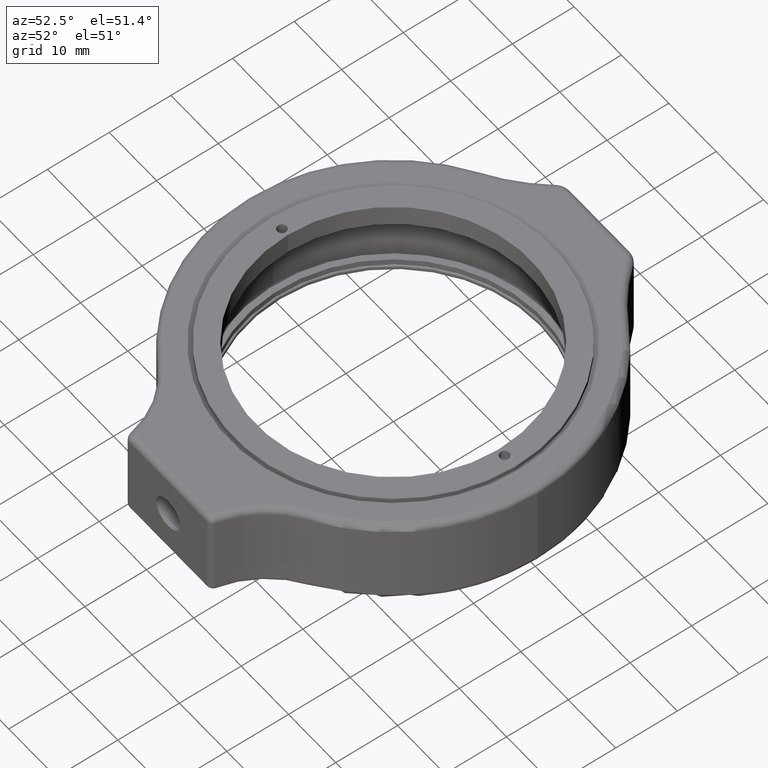
[diagram: clean part render]
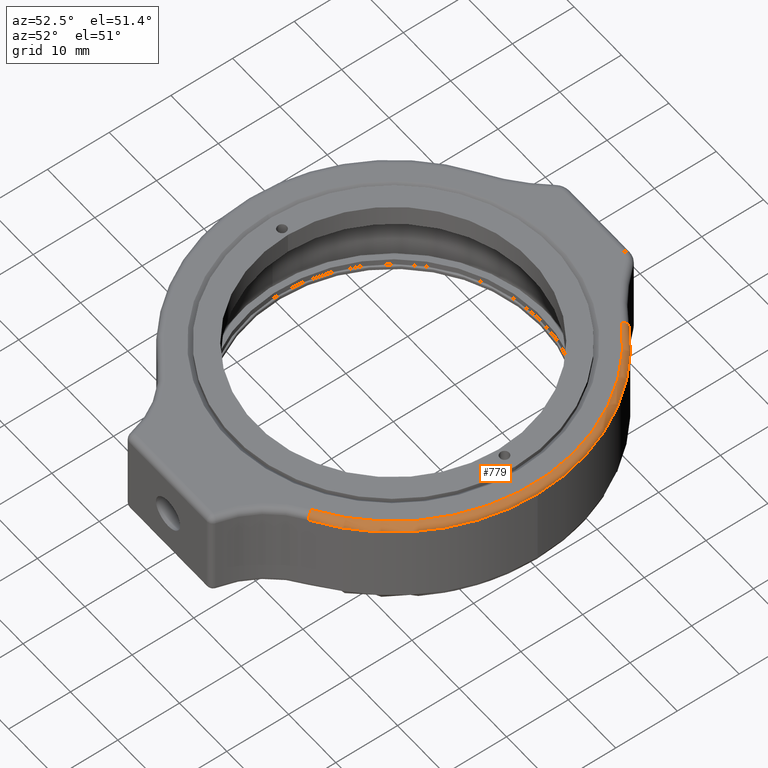
[diagram: same view with one face highlighted and labeled with its STEP entity id]
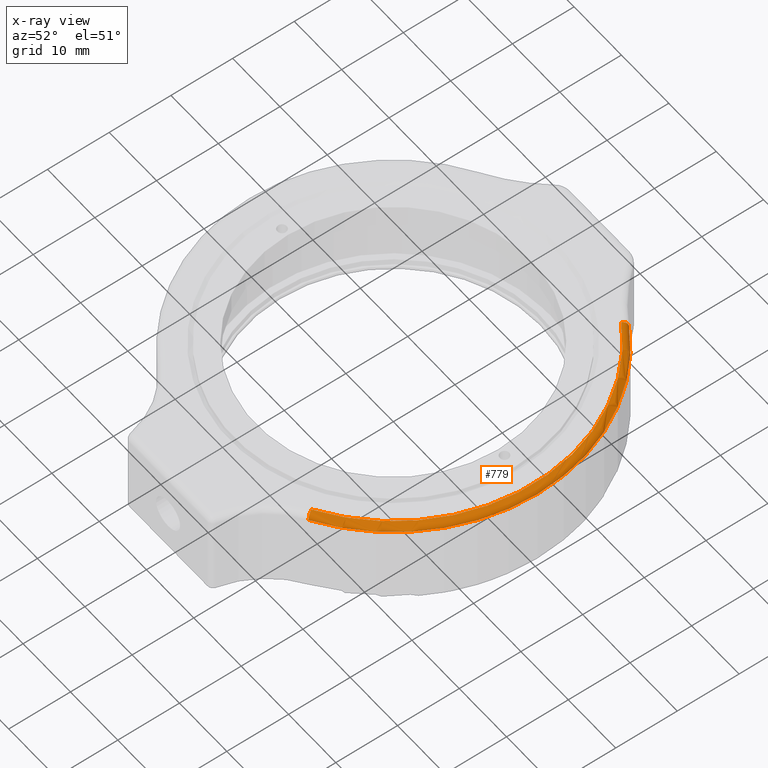
[diagram: x-ray of the same camera — body ghosted, the highlighted face saturated]
A machine part, auxiliary view. The second image highlights one B-rep face of the part: STEP entity #779.
The next image is the same camera in x-ray: the body ghosted, the highlighted face saturated — about 0% of this face is hidden behind the body in this view.
In plain terms, the highlighted toroidal blend (fillet) surface has major radius 29.5 mm and minor (blend) radius 1 mm.
Its self-contained STEP definition (entity closure, byte-faithful):
#32 = VERTEX_POINT ( 'NONE', #1661 ) ;
#69 = ORIENTED_EDGE ( 'NONE', *, *, #1708, .F. ) ;
#77 = EDGE_CURVE ( 'NONE', #1657, #32, #2103, .T. ) ;
#104 = CARTESIAN_POINT ( 'NONE',  ( 15.25464522049211300, 25.24966928886230400, -1.000000000000000000 ) ) ;
#109 = EDGE_CURVE ( 'NONE', #2059, #1657, #364, .T. ) ;
#125 = AXIS2_PLACEMENT_3D ( 'NONE', #104, #2160, #1650 ) ;
#187 = EDGE_LOOP ( 'NONE', ( #1815, #69, #885, #1533, #2045 ) ) ;
#259 = DIRECTION ( 'NONE',  ( 0.8519000879304529100, 0.5237043442478653800, 0.0000000000000000000 ) ) ;
#261 = DIRECTION ( 'NONE',  ( 0.0000000000000000000, 0.0000000000000000000, -1.000000000000000000 ) ) ;
#364 = CIRCLE ( 'NONE', #125, 0.9999999999999987800 ) ;
#369 = DIRECTION ( 'NONE',  ( -1.000000000000000000, 7.771561172376096800E-016, 0.0000000000000000000 ) ) ;
#398 = FACE_OUTER_BOUND ( 'NONE', #187, .T. ) ;
#430 = CARTESIAN_POINT ( 'NONE',  ( 0.0000000000000000000, 0.0000000000000000000, 0.0000000000000000000 ) ) ;
#463 = CARTESIAN_POINT ( 'NONE',  ( 0.0000000000000000000, 0.0000000000000000000, -1.000000000000000900 ) ) ;
#690 = CIRCLE ( 'NONE', #697, 29.50000000000000000 ) ;
#697 = AXIS2_PLACEMENT_3D ( 'NONE', #430, #790, #1645 ) ;
#779 = ADVANCED_FACE ( 'NONE', ( #398 ), #1522, .T. ) ;
#790 = DIRECTION ( 'NONE',  ( -0.0000000000000000000, -0.0000000000000000000, 1.000000000000000000 ) ) ;
#802 = CARTESIAN_POINT ( 'NONE',  ( 15.25464522049211300, 25.24966928886230400, 0.0000000000000000000 ) ) ;
#879 = CARTESIAN_POINT ( 'NONE',  ( 0.0000000000000000000, 0.0000000000000000000, -1.000000000000000900 ) ) ;
#885 = ORIENTED_EDGE ( 'NONE', *, *, #77, .F. ) ;
#924 = DIRECTION ( 'NONE',  ( -1.000000000000000000, 7.771561172376096800E-016, 0.0000000000000000000 ) ) ;
#989 = EDGE_CURVE ( 'NONE', #1339, #1503, #1676, .T. ) ;
#1020 = AXIS2_PLACEMENT_3D ( 'NONE', #1272, #1252, #924 ) ;
#1041 = CARTESIAN_POINT ( 'NONE',  ( 15.77175183813591300, 26.10559028170506600, -1.000000000000000900 ) ) ;
#1059 = AXIS2_PLACEMENT_3D ( 'NONE', #879, #1062, #369 ) ;
#1062 = DIRECTION ( 'NONE',  ( 0.0000000000000000000, 0.0000000000000000000, -1.000000000000000000 ) ) ;
#1128 = CARTESIAN_POINT ( 'NONE',  ( 15.44927815531207700, -25.13105259394834700, -0.0000000000000000000 ) ) ;
#1178 = AXIS2_PLACEMENT_3D ( 'NONE', #1845, #259, #1481 ) ;
#1252 = DIRECTION ( 'NONE',  ( 0.0000000000000000000, 0.0000000000000000000, -1.000000000000000000 ) ) ;
#1272 = CARTESIAN_POINT ( 'NONE',  ( 0.0000000000000000000, 0.0000000000000000000, -1.000000000000000900 ) ) ;
#1339 = VERTEX_POINT ( 'NONE', #1128 ) ;
#1365 = CARTESIAN_POINT ( 'NONE',  ( 15.97298249955993800, -25.98295268187881400, -1.000000000000000900 ) ) ;
#1431 = EDGE_CURVE ( 'NONE', #1339, #2059, #690, .T. ) ;
#1481 = DIRECTION ( 'NONE',  ( 0.5237043442478656100, -0.8519000879304528000, 0.0000000000000000000 ) ) ;
#1503 = VERTEX_POINT ( 'NONE', #1365 ) ;
#1522 = TOROIDAL_SURFACE ( 'NONE', #1059, 29.50000000000000000, 1.000000000000000000 ) ;
#1533 = ORIENTED_EDGE ( 'NONE', *, *, #109, .F. ) ;
#1600 = AXIS2_PLACEMENT_3D ( 'NONE', #463, #261, #1824 ) ;
#1645 = DIRECTION ( 'NONE',  ( -1.000000000000000000, 7.771561172376096800E-016, 0.0000000000000000000 ) ) ;
#1650 = DIRECTION ( 'NONE',  ( 0.5171066176437993900, 0.8559209928427912200, 0.0000000000000000000 ) ) ;
#1657 = VERTEX_POINT ( 'NONE', #1041 ) ;
#1661 = CARTESIAN_POINT ( 'NONE',  ( 30.50000000000000000, -2.370326157574709500E-014, -1.000000000000000900 ) ) ;
#1676 = CIRCLE ( 'NONE', #1178, 1.000000000000001100 ) ;
#1708 = EDGE_CURVE ( 'NONE', #32, #1503, #2128, .T. ) ;
#1815 = ORIENTED_EDGE ( 'NONE', *, *, #989, .T. ) ;
#1824 = DIRECTION ( 'NONE',  ( -1.000000000000000000, 7.771561172376096800E-016, 0.0000000000000000000 ) ) ;
#1845 = CARTESIAN_POINT ( 'NONE',  ( 15.44927815531207200, -25.13105259394833600, -1.000000000000000000 ) ) ;
#2045 = ORIENTED_EDGE ( 'NONE', *, *, #1431, .F. ) ;
#2059 = VERTEX_POINT ( 'NONE', #802 ) ;
#2103 = CIRCLE ( 'NONE', #1600, 30.50000000000000000 ) ;
#2128 = CIRCLE ( 'NONE', #1020, 30.50000000000000000 ) ;
#2160 = DIRECTION ( 'NONE',  ( -0.8559209928427901100, 0.5171066176438011700, 0.0000000000000000000 ) ) ;